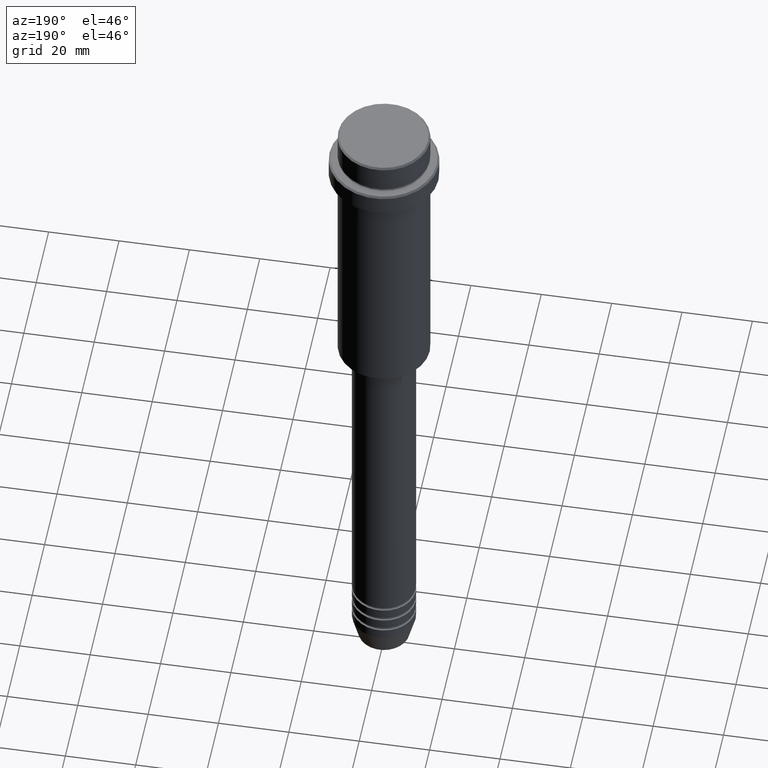
[diagram: clean part render]
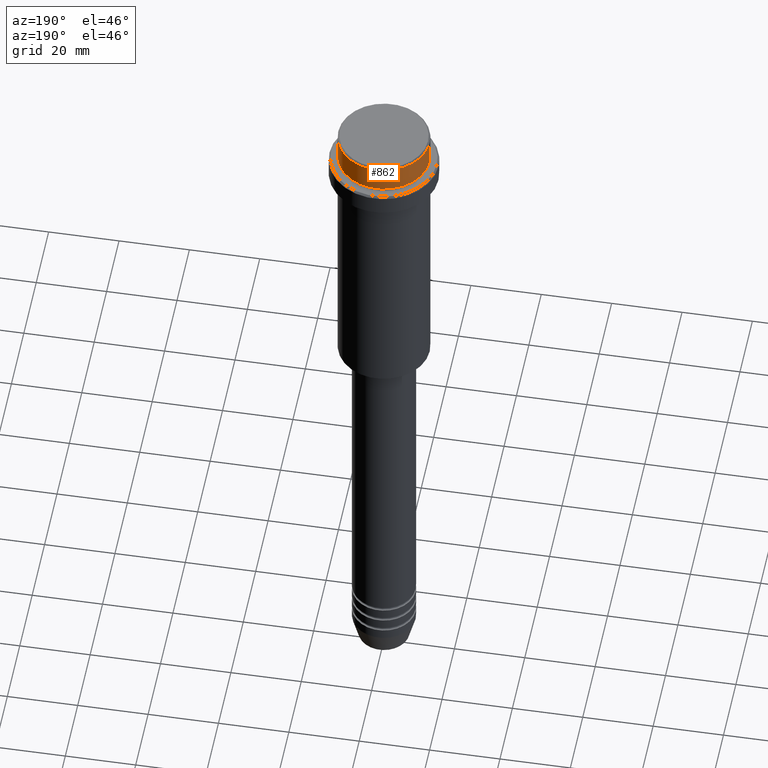
[diagram: same view with one face highlighted and labeled with its STEP entity id]
A machine part, auxiliary view. The second image highlights one B-rep face of the part: STEP entity #862.
In plain terms, the highlighted cylindrical surface (partial cylindrical patch) has radius 13 mm, axis along (-0, -0, 1).
Its self-contained STEP definition (entity closure, byte-faithful):
#32 = VECTOR ( 'NONE', #995, 1000.000000000000000 ) ;
#53 = CARTESIAN_POINT ( 'NONE',  ( 12.99999999999999822, 0.000000000000000000, -7.999999999999998224 ) ) ;
#97 = CIRCLE ( 'NONE', #329, 12.99999999999999822 ) ;
#124 = LINE ( 'NONE', #1321, #1050 ) ;
#130 = CARTESIAN_POINT ( 'NONE',  ( 0.000000000000000000, 0.000000000000000000, 0.000000000000000000 ) ) ;
#157 = CYLINDRICAL_SURFACE ( 'NONE', #648, 12.99999999999999822 ) ;
#177 = ORIENTED_EDGE ( 'NONE', *, *, #1218, .T. ) ;
#200 = EDGE_CURVE ( 'NONE', #1272, #978, #439, .T. ) ;
#205 = EDGE_CURVE ( 'NONE', #1287, #1167, #124, .T. ) ;
#263 = ORIENTED_EDGE ( 'NONE', *, *, #205, .T. ) ;
#270 = DIRECTION ( 'NONE',  ( 1.000000000000000000, 0.000000000000000000, 0.000000000000000000 ) ) ;
#286 = CARTESIAN_POINT ( 'NONE',  ( -12.99999999999999822, 1.592040838891558898E-15, -7.999999999999998224 ) ) ;
#291 = CARTESIAN_POINT ( 'NONE',  ( -12.99999999999999822, 1.592040838891558898E-15, -0.5000000000000037748 ) ) ;
#329 = AXIS2_PLACEMENT_3D ( 'NONE', #372, #1253, #270 ) ;
#372 = CARTESIAN_POINT ( 'NONE',  ( 0.000000000000000000, 0.000000000000000000, -0.5000000000000037748 ) ) ;
#374 = DIRECTION ( 'NONE',  ( 1.000000000000000000, 0.000000000000000000, 0.000000000000000000 ) ) ;
#431 = CIRCLE ( 'NONE', #1398, 12.99999999999999822 ) ;
#439 = LINE ( 'NONE', #1206, #32 ) ;
#516 = EDGE_CURVE ( 'NONE', #1272, #1287, #431, .T. ) ;
#555 = FACE_OUTER_BOUND ( 'NONE', #1297, .T. ) ;
#623 = DIRECTION ( 'NONE',  ( -0.000000000000000000, -0.000000000000000000, 1.000000000000000000 ) ) ;
#648 = AXIS2_PLACEMENT_3D ( 'NONE', #130, #1226, #374 ) ;
#655 = CARTESIAN_POINT ( 'NONE',  ( 12.99999999999999822, 0.000000000000000000, -0.5000000000000037748 ) ) ;
#787 = DIRECTION ( 'NONE',  ( -0.000000000000000000, -0.000000000000000000, 1.000000000000000000 ) ) ;
#835 = CARTESIAN_POINT ( 'NONE',  ( 0.000000000000000000, 0.000000000000000000, -7.999999999999998224 ) ) ;
#862 = ADVANCED_FACE ( 'NONE', ( #555 ), #157, .T. ) ;
#931 = DIRECTION ( 'NONE',  ( 1.000000000000000000, 0.000000000000000000, 0.000000000000000000 ) ) ;
#978 = VERTEX_POINT ( 'NONE', #655 ) ;
#995 = DIRECTION ( 'NONE',  ( -0.000000000000000000, -0.000000000000000000, 1.000000000000000000 ) ) ;
#1050 = VECTOR ( 'NONE', #787, 1000.000000000000000 ) ;
#1087 = ORIENTED_EDGE ( 'NONE', *, *, #200, .F. ) ;
#1167 = VERTEX_POINT ( 'NONE', #291 ) ;
#1206 = CARTESIAN_POINT ( 'NONE',  ( 12.99999999999999822, 0.000000000000000000, 0.000000000000000000 ) ) ;
#1218 = EDGE_CURVE ( 'NONE', #1167, #978, #97, .T. ) ;
#1226 = DIRECTION ( 'NONE',  ( -0.000000000000000000, -0.000000000000000000, 1.000000000000000000 ) ) ;
#1253 = DIRECTION ( 'NONE',  ( 0.000000000000000000, 0.000000000000000000, -1.000000000000000000 ) ) ;
#1272 = VERTEX_POINT ( 'NONE', #53 ) ;
#1287 = VERTEX_POINT ( 'NONE', #286 ) ;
#1297 = EDGE_LOOP ( 'NONE', ( #1376, #263, #177, #1087 ) ) ;
#1321 = CARTESIAN_POINT ( 'NONE',  ( -12.99999999999999822, 1.592040838891558898E-15, 0.000000000000000000 ) ) ;
#1376 = ORIENTED_EDGE ( 'NONE', *, *, #516, .T. ) ;
#1398 = AXIS2_PLACEMENT_3D ( 'NONE', #835, #623, #931 ) ;